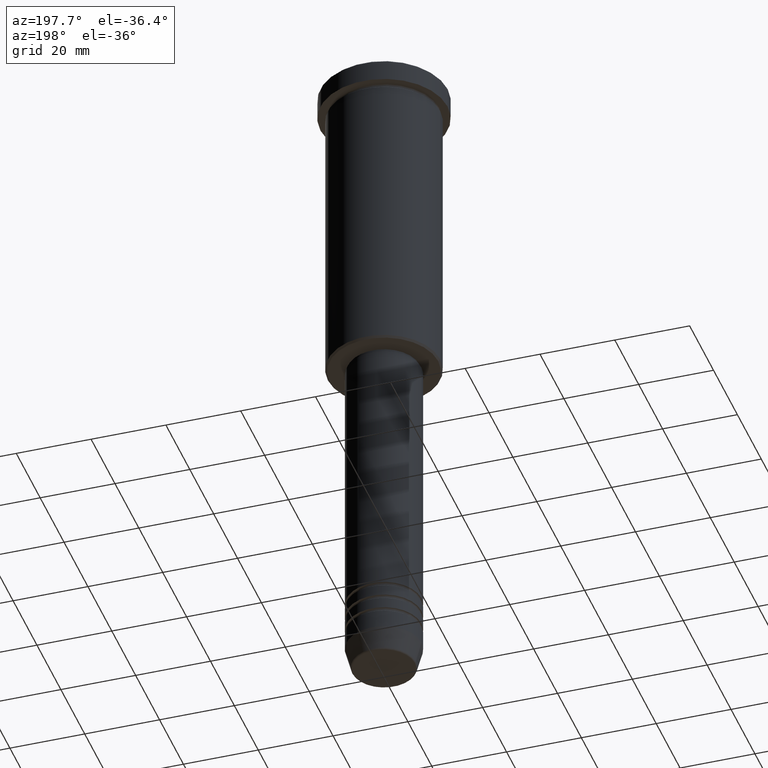
[diagram: clean part render]
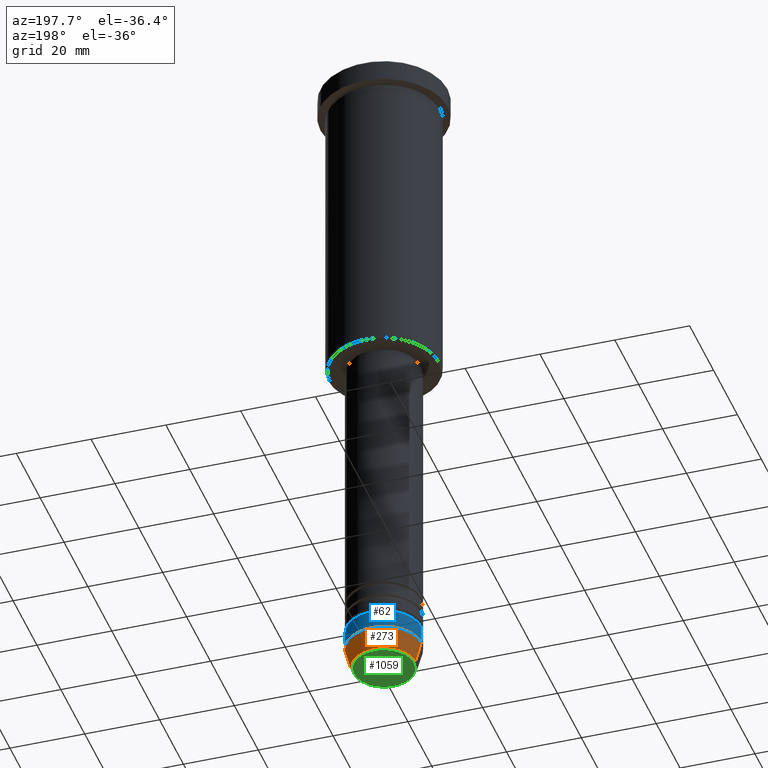
[diagram: same view with three faces highlighted in distinct colors, each labeled with its STEP entity id]
A machine part, auxiliary view with three faces highlighted in distinct colors.
Their STEP definitions:

[orange] entity #273 — the highlighted conical surface has half-angle 15 deg.
#93 = DIRECTION ( 'NONE',  ( -0.000000000000000000, -0.000000000000000000, 1.000000000000000000 ) ) ;
#98 = AXIS2_PLACEMENT_3D ( 'NONE', #917, #93, #390 ) ;
#138 = ORIENTED_EDGE ( 'NONE', *, *, #175, .F. ) ;
#145 = ORIENTED_EDGE ( 'NONE', *, *, #573, .F. ) ;
#146 = ORIENTED_EDGE ( 'NONE', *, *, #162, .T. ) ;
#162 = EDGE_CURVE ( 'NONE', #461, #217, #256, .T. ) ;
#170 = CARTESIAN_POINT ( 'NONE',  ( -10.00000000000000178, 1.224646799147353454E-15, -174.0000000000000284 ) ) ;
#175 = EDGE_CURVE ( 'NONE', #1083, #309, #1167, .T. ) ;
#217 = VERTEX_POINT ( 'NONE', #170 ) ;
#256 = LINE ( 'NONE', #1170, #1103 ) ;
#273 = ADVANCED_FACE ( 'NONE', ( #549 ), #626, .T. ) ;
#307 = EDGE_CURVE ( 'NONE', #1083, #461, #460, .T. ) ;
#308 = EDGE_LOOP ( 'NONE', ( #618, #146, #145, #138 ) ) ;
#309 = VERTEX_POINT ( 'NONE', #364 ) ;
#317 = CARTESIAN_POINT ( 'NONE',  ( 0.000000000000000000, 0.000000000000000000, -174.0000000000000284 ) ) ;
#364 = CARTESIAN_POINT ( 'NONE',  ( 10.00000000000000178, 0.000000000000000000, -174.0000000000000284 ) ) ;
#390 = DIRECTION ( 'NONE',  ( 1.000000000000000000, 0.000000000000000000, 0.000000000000000000 ) ) ;
#423 = CIRCLE ( 'NONE', #1035, 10.00000000000000178 ) ;
#439 = DIRECTION ( 'NONE',  ( -0.2588190451025214611, 3.169619151431773569E-17, 0.9659258262890680902 ) ) ;
#460 = CIRCLE ( 'NONE', #861, 8.491604264568326954 ) ;
#461 = VERTEX_POINT ( 'NONE', #1031 ) ;
#496 = VECTOR ( 'NONE', #803, 1000.000000000000000 ) ;
#549 = FACE_OUTER_BOUND ( 'NONE', #308, .T. ) ;
#564 = DIRECTION ( 'NONE',  ( 1.000000000000000000, 0.000000000000000000, 0.000000000000000000 ) ) ;
#573 = EDGE_CURVE ( 'NONE', #309, #217, #423, .T. ) ;
#618 = ORIENTED_EDGE ( 'NONE', *, *, #307, .T. ) ;
#626 = CONICAL_SURFACE ( 'NONE', #98, 10.00000000000000178, 0.2617993877991501850 ) ;
#645 = CARTESIAN_POINT ( 'NONE',  ( 0.000000000000000000, 0.000000000000000000, -179.6294095225512422 ) ) ;
#676 = DIRECTION ( 'NONE',  ( -0.000000000000000000, -0.000000000000000000, 1.000000000000000000 ) ) ;
#803 = DIRECTION ( 'NONE',  ( 0.2588190451025214611, 0.000000000000000000, 0.9659258262890680902 ) ) ;
#861 = AXIS2_PLACEMENT_3D ( 'NONE', #645, #934, #564 ) ;
#885 = DIRECTION ( 'NONE',  ( 1.000000000000000000, 0.000000000000000000, 0.000000000000000000 ) ) ;
#900 = CARTESIAN_POINT ( 'NONE',  ( 10.00000000000000178, 0.000000000000000000, -174.0000000000000284 ) ) ;
#917 = CARTESIAN_POINT ( 'NONE',  ( 0.000000000000000000, 0.000000000000000000, -174.0000000000000284 ) ) ;
#934 = DIRECTION ( 'NONE',  ( -0.000000000000000000, -0.000000000000000000, 1.000000000000000000 ) ) ;
#968 = CARTESIAN_POINT ( 'NONE',  ( 8.491604264568326954, 0.000000000000000000, -179.6294095225512422 ) ) ;
#1031 = CARTESIAN_POINT ( 'NONE',  ( -8.491604264568326954, 1.132284198685157767E-15, -179.6294095225512422 ) ) ;
#1035 = AXIS2_PLACEMENT_3D ( 'NONE', #317, #676, #885 ) ;
#1083 = VERTEX_POINT ( 'NONE', #968 ) ;
#1103 = VECTOR ( 'NONE', #439, 1000.000000000000000 ) ;
#1167 = LINE ( 'NONE', #900, #496 ) ;
#1170 = CARTESIAN_POINT ( 'NONE',  ( -10.00000000000000178, 1.224646799147353454E-15, -174.0000000000000284 ) ) ;

[blue] entity #62 — the highlighted cylindrical surface (partial cylindrical patch) has radius 10 mm, axis along (-0, -0, 1).
#56 = ORIENTED_EDGE ( 'NONE', *, *, #65, .F. ) ;
#62 = ADVANCED_FACE ( 'NONE', ( #177 ), #104, .T. ) ;
#65 = EDGE_CURVE ( 'NONE', #1037, #491, #356, .T. ) ;
#78 = CARTESIAN_POINT ( 'NONE',  ( 0.000000000000000000, 0.000000000000000000, 0.000000000000000000 ) ) ;
#91 = DIRECTION ( 'NONE',  ( 1.000000000000000000, 0.000000000000000000, 0.000000000000000000 ) ) ;
#104 = CYLINDRICAL_SURFACE ( 'NONE', #381, 10.00000000000000178 ) ;
#170 = CARTESIAN_POINT ( 'NONE',  ( -10.00000000000000178, 1.224646799147353454E-15, -174.0000000000000284 ) ) ;
#177 = FACE_OUTER_BOUND ( 'NONE', #964, .T. ) ;
#217 = VERTEX_POINT ( 'NONE', #170 ) ;
#278 = EDGE_CURVE ( 'NONE', #309, #1037, #546, .T. ) ;
#293 = ORIENTED_EDGE ( 'NONE', *, *, #636, .T. ) ;
#309 = VERTEX_POINT ( 'NONE', #364 ) ;
#317 = CARTESIAN_POINT ( 'NONE',  ( 0.000000000000000000, 0.000000000000000000, -174.0000000000000284 ) ) ;
#356 = CIRCLE ( 'NONE', #420, 10.00000000000000000 ) ;
#359 = VECTOR ( 'NONE', #1019, 1000.000000000000000 ) ;
#364 = CARTESIAN_POINT ( 'NONE',  ( 10.00000000000000178, 0.000000000000000000, -174.0000000000000284 ) ) ;
#381 = AXIS2_PLACEMENT_3D ( 'NONE', #78, #914, #91 ) ;
#420 = AXIS2_PLACEMENT_3D ( 'NONE', #805, #816, #1097 ) ;
#423 = CIRCLE ( 'NONE', #1035, 10.00000000000000178 ) ;
#482 = VECTOR ( 'NONE', #530, 1000.000000000000000 ) ;
#491 = VERTEX_POINT ( 'NONE', #962 ) ;
#530 = DIRECTION ( 'NONE',  ( -0.000000000000000000, -0.000000000000000000, 1.000000000000000000 ) ) ;
#546 = LINE ( 'NONE', #830, #359 ) ;
#573 = EDGE_CURVE ( 'NONE', #309, #217, #423, .T. ) ;
#611 = CARTESIAN_POINT ( 'NONE',  ( -10.00000000000000178, 1.224646799147353454E-15, 0.000000000000000000 ) ) ;
#636 = EDGE_CURVE ( 'NONE', #217, #491, #895, .T. ) ;
#673 = ORIENTED_EDGE ( 'NONE', *, *, #573, .T. ) ;
#676 = DIRECTION ( 'NONE',  ( -0.000000000000000000, -0.000000000000000000, 1.000000000000000000 ) ) ;
#805 = CARTESIAN_POINT ( 'NONE',  ( 0.000000000000000000, 0.000000000000000000, -169.0000000000000000 ) ) ;
#816 = DIRECTION ( 'NONE',  ( -0.000000000000000000, -0.000000000000000000, 1.000000000000000000 ) ) ;
#830 = CARTESIAN_POINT ( 'NONE',  ( 10.00000000000000178, 0.000000000000000000, 0.000000000000000000 ) ) ;
#885 = DIRECTION ( 'NONE',  ( 1.000000000000000000, 0.000000000000000000, 0.000000000000000000 ) ) ;
#895 = LINE ( 'NONE', #611, #482 ) ;
#914 = DIRECTION ( 'NONE',  ( -0.000000000000000000, -0.000000000000000000, 1.000000000000000000 ) ) ;
#952 = CARTESIAN_POINT ( 'NONE',  ( 10.00000000000000000, 0.000000000000000000, -169.0000000000000000 ) ) ;
#962 = CARTESIAN_POINT ( 'NONE',  ( -10.00000000000000000, 1.224646799147353256E-15, -169.0000000000000000 ) ) ;
#964 = EDGE_LOOP ( 'NONE', ( #673, #293, #56, #1042 ) ) ;
#1019 = DIRECTION ( 'NONE',  ( -0.000000000000000000, -0.000000000000000000, 1.000000000000000000 ) ) ;
#1035 = AXIS2_PLACEMENT_3D ( 'NONE', #317, #676, #885 ) ;
#1037 = VERTEX_POINT ( 'NONE', #952 ) ;
#1042 = ORIENTED_EDGE ( 'NONE', *, *, #278, .F. ) ;
#1097 = DIRECTION ( 'NONE',  ( 1.000000000000000000, 0.000000000000000000, 0.000000000000000000 ) ) ;

[green] entity #1059 — the highlighted planar face has unit normal (0, -0, 1).
#1 = AXIS2_PLACEMENT_3D ( 'NONE', #959, #1027, #401 ) ;
#23 = PLANE ( 'NONE',  #1036 ) ;
#50 = VERTEX_POINT ( 'NONE', #1024 ) ;
#222 = ORIENTED_EDGE ( 'NONE', *, *, #898, .T. ) ;
#401 = DIRECTION ( 'NONE',  ( 1.000000000000000000, 0.000000000000000000, 0.000000000000000000 ) ) ;
#419 = DIRECTION ( 'NONE',  ( 1.000000000000000000, 0.000000000000000000, 0.000000000000000000 ) ) ;
#578 = CARTESIAN_POINT ( 'NONE',  ( 0.000000000000000000, 0.000000000000000000, -180.0000000000000000 ) ) ;
#579 = EDGE_CURVE ( 'NONE', #1163, #50, #589, .T. ) ;
#589 = CIRCLE ( 'NONE', #997, 8.008641351423790411 ) ;
#599 = DIRECTION ( 'NONE',  ( 0.000000000000000000, 0.000000000000000000, -1.000000000000000000 ) ) ;
#605 = CARTESIAN_POINT ( 'NONE',  ( 8.008641351423790411, 0.000000000000000000, -180.0000000000000000 ) ) ;
#698 = CARTESIAN_POINT ( 'NONE',  ( 0.000000000000000000, 0.000000000000000000, -180.0000000000000000 ) ) ;
#747 = DIRECTION ( 'NONE',  ( 1.000000000000000000, 0.000000000000000000, 0.000000000000000000 ) ) ;
#752 = DIRECTION ( 'NONE',  ( 0.000000000000000000, -0.000000000000000000, 1.000000000000000000 ) ) ;
#847 = FACE_OUTER_BOUND ( 'NONE', #1015, .T. ) ;
#898 = EDGE_CURVE ( 'NONE', #50, #1163, #981, .T. ) ;
#947 = ORIENTED_EDGE ( 'NONE', *, *, #579, .T. ) ;
#959 = CARTESIAN_POINT ( 'NONE',  ( 0.000000000000000000, 0.000000000000000000, -180.0000000000000000 ) ) ;
#981 = CIRCLE ( 'NONE', #1, 8.008641351423790411 ) ;
#997 = AXIS2_PLACEMENT_3D ( 'NONE', #698, #599, #419 ) ;
#1015 = EDGE_LOOP ( 'NONE', ( #947, #222 ) ) ;
#1024 = CARTESIAN_POINT ( 'NONE',  ( -8.008641351423790411, 1.010348648938494750E-15, -180.0000000000000000 ) ) ;
#1027 = DIRECTION ( 'NONE',  ( 0.000000000000000000, 0.000000000000000000, -1.000000000000000000 ) ) ;
#1036 = AXIS2_PLACEMENT_3D ( 'NONE', #578, #752, #747 ) ;
#1059 = ADVANCED_FACE ( 'NONE', ( #847 ), #23, .F. ) ;
#1163 = VERTEX_POINT ( 'NONE', #605 ) ;